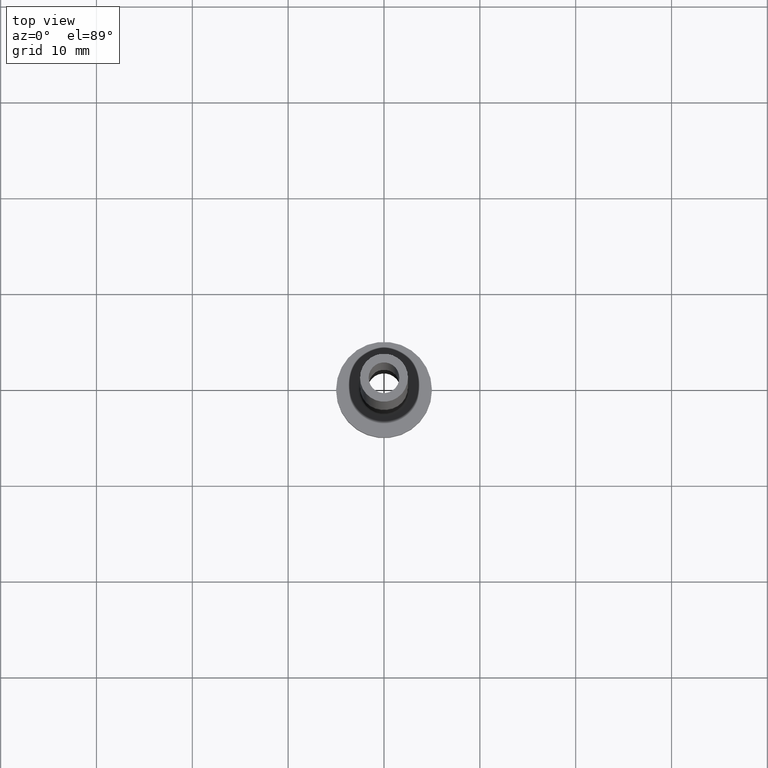
[diagram: clean part render]
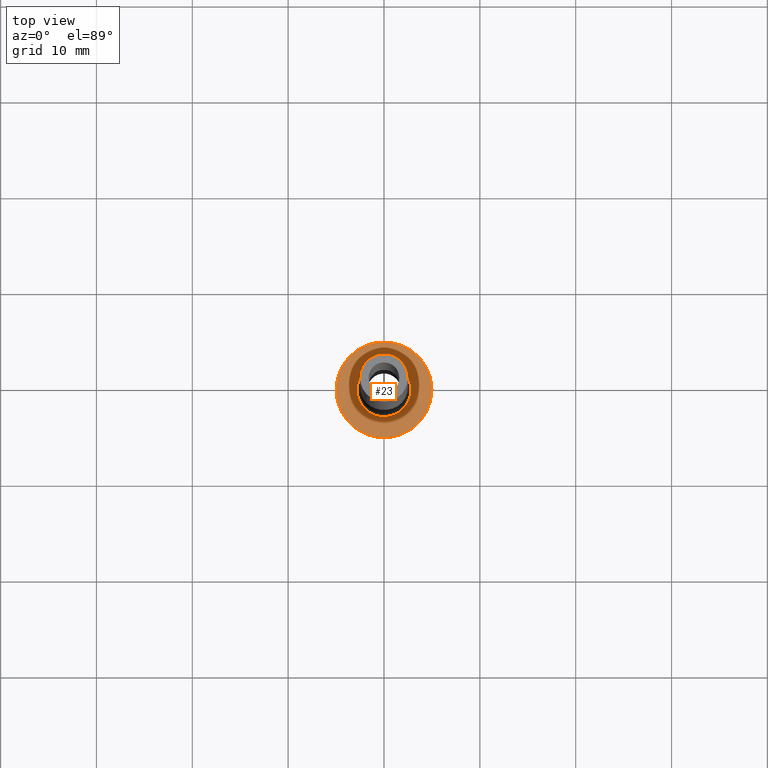
[diagram: same view with one face highlighted and labeled with its STEP entity id]
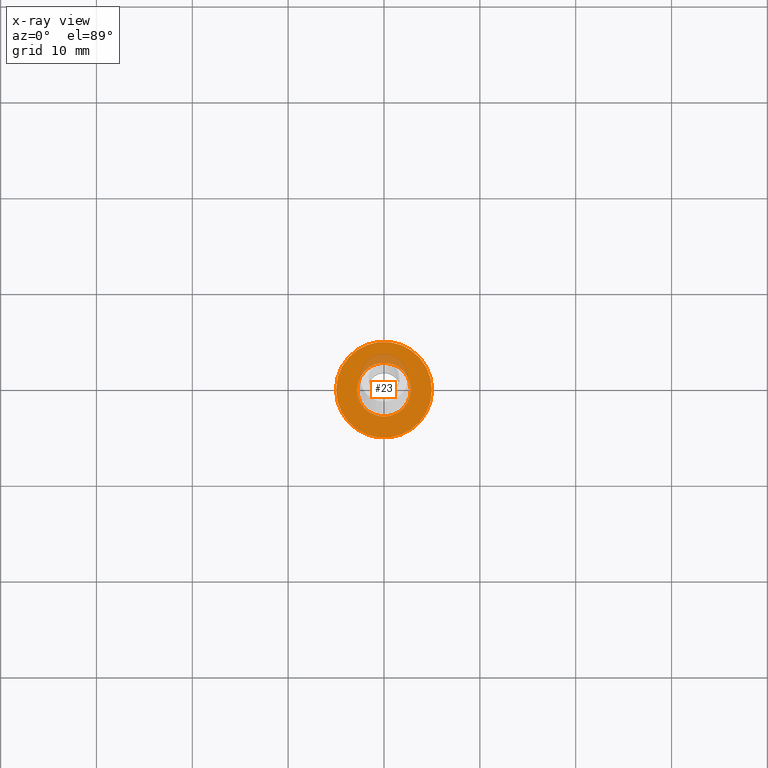
[diagram: x-ray of the same camera — body ghosted, the highlighted face saturated]
A machine part, top view. The second image highlights one B-rep face of the part: STEP entity #23.
The next image is the same camera in x-ray: the body ghosted, the highlighted face saturated — about 8% of this face is hidden behind the body in this view.
In plain terms, the highlighted planar face has unit normal (0, 0, 1).
Its self-contained STEP definition (entity closure, byte-faithful):
#1 = DIRECTION ( 'NONE',  ( -0.000000000000000000, -0.000000000000000000, -1.000000000000000000 ) ) ;
#16 = CIRCLE ( 'NONE', #337, 5.000000000000000000 ) ;
#23 = ADVANCED_FACE ( 'NONE', ( #247, #148 ), #238, .T. ) ;
#31 = VERTEX_POINT ( 'NONE', #43 ) ;
#32 = EDGE_CURVE ( 'NONE', #278, #142, #385, .T. ) ;
#38 = EDGE_CURVE ( 'NONE', #31, #358, #16, .T. ) ;
#43 = CARTESIAN_POINT ( 'NONE',  ( 5.000000000000000000, 6.123233995736766282E-16, 3.000000000000000000 ) ) ;
#50 = ORIENTED_EDGE ( 'NONE', *, *, #32, .T. ) ;
#57 = CIRCLE ( 'NONE', #177, 2.799999999999999822 ) ;
#74 = ORIENTED_EDGE ( 'NONE', *, *, #83, .T. ) ;
#83 = EDGE_CURVE ( 'NONE', #358, #31, #193, .T. ) ;
#98 = CARTESIAN_POINT ( 'NONE',  ( 2.799999999999999822, 0.000000000000000000, 2.999999999999998668 ) ) ;
#103 = CARTESIAN_POINT ( 'NONE',  ( 0.000000000000000000, 0.000000000000000000, 3.000000000000000000 ) ) ;
#112 = DIRECTION ( 'NONE',  ( 1.000000000000000000, 0.000000000000000000, -0.000000000000000000 ) ) ;
#114 = DIRECTION ( 'NONE',  ( 0.000000000000000000, 0.000000000000000000, 1.000000000000000000 ) ) ;
#117 = EDGE_CURVE ( 'NONE', #142, #278, #57, .T. ) ;
#127 = EDGE_LOOP ( 'NONE', ( #74, #152 ) ) ;
#142 = VERTEX_POINT ( 'NONE', #222 ) ;
#147 = ORIENTED_EDGE ( 'NONE', *, *, #117, .T. ) ;
#148 = FACE_OUTER_BOUND ( 'NONE', #127, .T. ) ;
#151 = DIRECTION ( 'NONE',  ( 1.000000000000000000, 0.000000000000000000, 0.000000000000000000 ) ) ;
#152 = ORIENTED_EDGE ( 'NONE', *, *, #38, .T. ) ;
#177 = AXIS2_PLACEMENT_3D ( 'NONE', #103, #276, #420 ) ;
#183 = DIRECTION ( 'NONE',  ( 0.000000000000000000, 0.000000000000000000, 1.000000000000000000 ) ) ;
#193 = CIRCLE ( 'NONE', #405, 5.000000000000000000 ) ;
#210 = CARTESIAN_POINT ( 'NONE',  ( 0.000000000000000000, 0.000000000000000000, 3.000000000000000000 ) ) ;
#215 = CARTESIAN_POINT ( 'NONE',  ( 0.000000000000000000, 0.000000000000000000, 3.000000000000000000 ) ) ;
#222 = CARTESIAN_POINT ( 'NONE',  ( -2.799999999999999822, 3.429011037612589276E-16, 2.999999999999998668 ) ) ;
#238 = PLANE ( 'NONE',  #440 ) ;
#247 = FACE_BOUND ( 'NONE', #304, .T. ) ;
#276 = DIRECTION ( 'NONE',  ( -0.000000000000000000, -0.000000000000000000, -1.000000000000000000 ) ) ;
#278 = VERTEX_POINT ( 'NONE', #98 ) ;
#283 = AXIS2_PLACEMENT_3D ( 'NONE', #210, #1, #284 ) ;
#284 = DIRECTION ( 'NONE',  ( 1.000000000000000000, 0.000000000000000000, 0.000000000000000000 ) ) ;
#288 = CARTESIAN_POINT ( 'NONE',  ( -5.000000000000000000, 0.000000000000000000, 3.000000000000000000 ) ) ;
#304 = EDGE_LOOP ( 'NONE', ( #50, #147 ) ) ;
#323 = DIRECTION ( 'NONE',  ( 1.000000000000000000, 0.000000000000000000, 0.000000000000000000 ) ) ;
#337 = AXIS2_PLACEMENT_3D ( 'NONE', #393, #114, #151 ) ;
#358 = VERTEX_POINT ( 'NONE', #288 ) ;
#385 = CIRCLE ( 'NONE', #283, 2.799999999999999822 ) ;
#393 = CARTESIAN_POINT ( 'NONE',  ( 0.000000000000000000, 0.000000000000000000, 3.000000000000000000 ) ) ;
#405 = AXIS2_PLACEMENT_3D ( 'NONE', #425, #183, #323 ) ;
#420 = DIRECTION ( 'NONE',  ( 1.000000000000000000, 0.000000000000000000, 0.000000000000000000 ) ) ;
#425 = CARTESIAN_POINT ( 'NONE',  ( 0.000000000000000000, 0.000000000000000000, 3.000000000000000000 ) ) ;
#440 = AXIS2_PLACEMENT_3D ( 'NONE', #215, #453, #112 ) ;
#453 = DIRECTION ( 'NONE',  ( 0.000000000000000000, 0.000000000000000000, 1.000000000000000000 ) ) ;